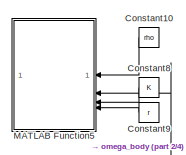
[diagram: root canvas - part 1/4, top center region]
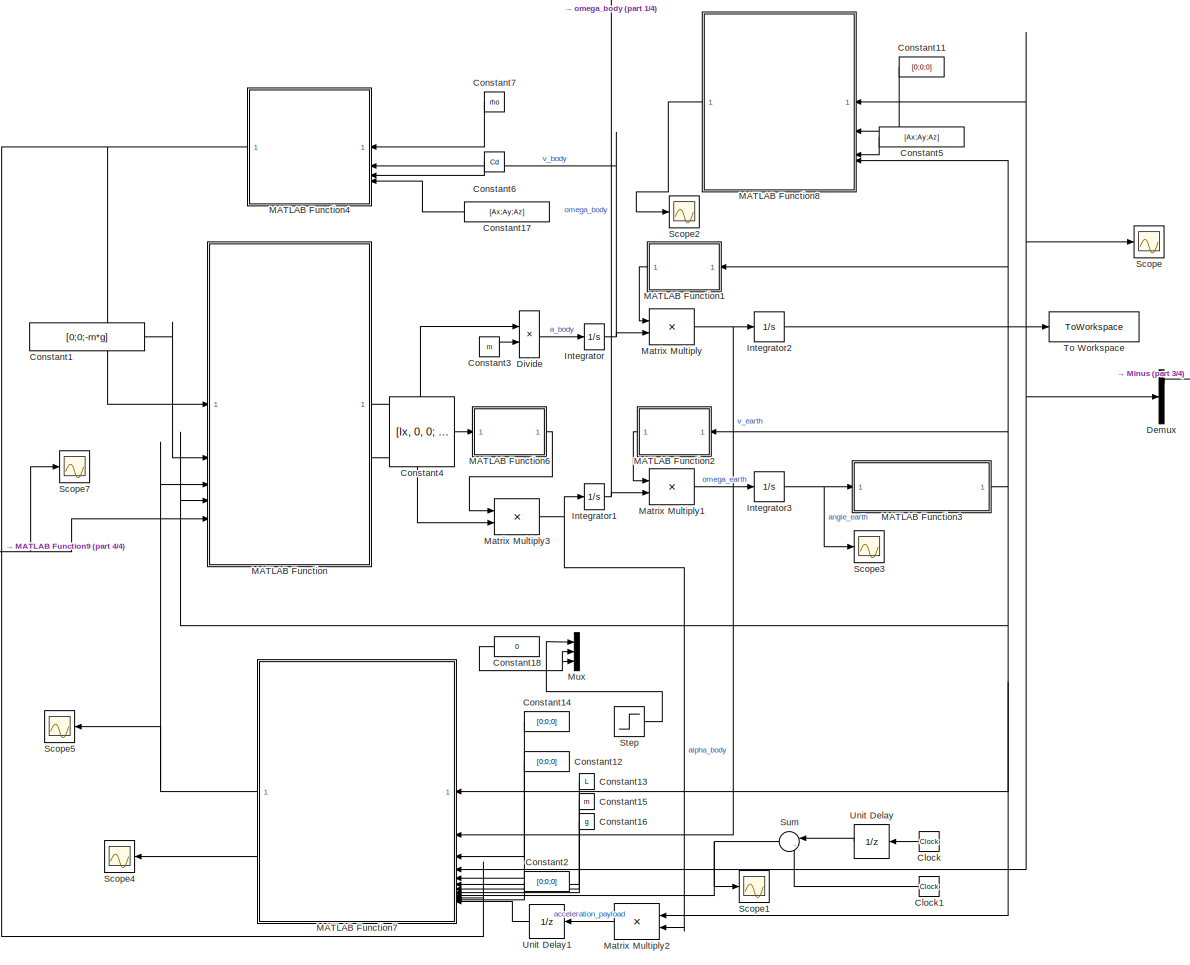
[diagram: root canvas - part 2/4, center side, full height]
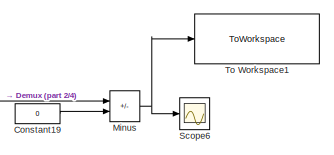
[diagram: root canvas - part 3/4, middle right region]
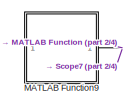
[diagram: root canvas - part 4/4, middle left region]
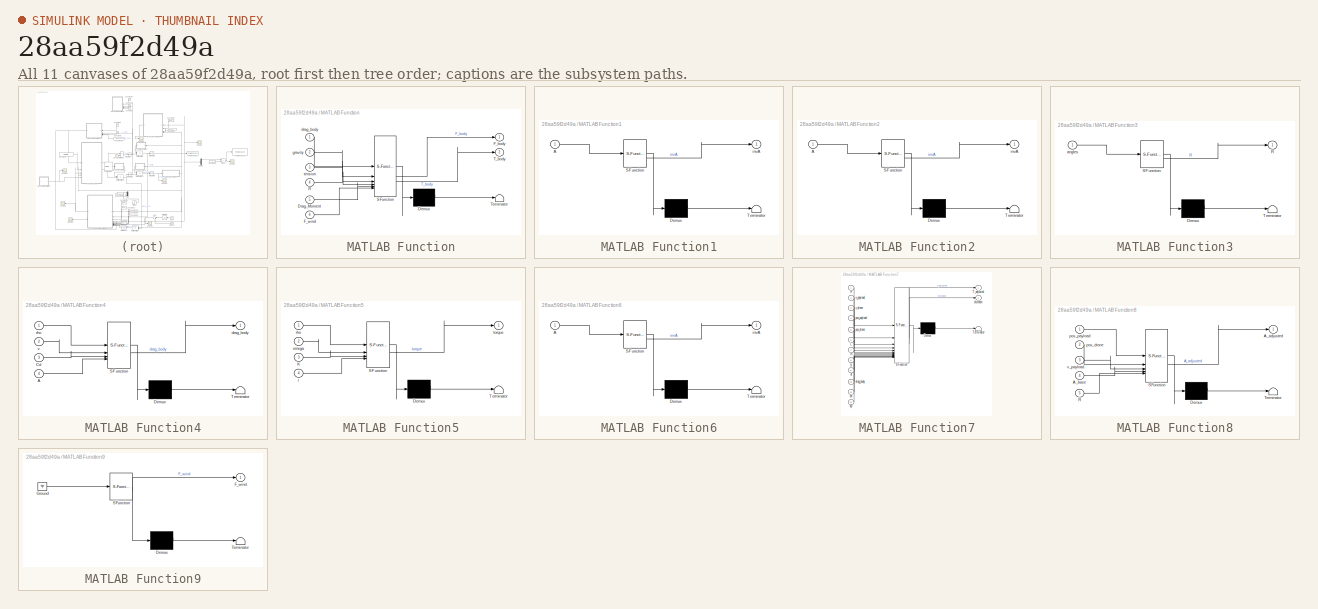
[diagram: thumbnail index - all 11 canvases of the model, root first then tree order]
MODEL slx_28aa59f2d49a
KIND model
CONFIG AbsTol = auto
CONFIG EnableMultiTasking = off
CONFIG FixedStep = 0.0001
CONFIG MaxStep = auto
CONFIG MinStep = auto
CONFIG RelTol = 1e-3
CONFIG SampleTimeConstraint = Unconstrained
CONFIG SolverName = VariableStepAuto
CONFIG StartTime = 0.0
CONFIG StopTime = 50
BLOCK [Clock] Clock
  NameLocation = top
BLOCK [Clock] Clock1
  NameLocation = top
BLOCK [Constant] Constant1
  Value = [0;0;-m*g]
BLOCK [Constant] Constant10
  NameLocation = top
  Value = rho
BLOCK [Constant] Constant11
  NameLocation = top
  Value = [0;0;0]
BLOCK [Constant] Constant12
  NameLocation = top
  Value = [0;0;0]
BLOCK [Constant] Constant13
  NameLocation = top
  Value = L
BLOCK [Constant] Constant14
  NameLocation = top
  Value = [0;0;0]
BLOCK [Constant] Constant15
  NameLocation = top
  Value = m
BLOCK [Constant] Constant16
  NameLocation = top
  Value = g
BLOCK [Constant] Constant17
  NameLocation = top
  Value = [Ax;Ay;Az]
BLOCK [Constant] Constant18
  NameLocation = top
  Value = 0
BLOCK [Constant] Constant19
  Value = 0
BLOCK [Constant] Constant2
  NameLocation = top
  Value = [0;0;0]
BLOCK [Constant] Constant3
  Value = m
BLOCK [Constant] Constant4
  Value = [Ix, 0, 0; 0, Iy, 0; 0, 0, Iz]
BLOCK [Constant] Constant5
  NameLocation = top
  Value = [Ax;Ay;Az]
BLOCK [Constant] Constant6
  NameLocation = top
  Value = Cd
BLOCK [Constant] Constant7
  NameLocation = top
  Value = rho
BLOCK [Constant] Constant8
  NameLocation = top
  Value = K
BLOCK [Constant] Constant9
  NameLocation = top
  Value = r
BLOCK [Demux] Demux
  Outputs = 3
BLOCK [Product] Divide
  Inputs = */
BLOCK [Integrator] Integrator
BLOCK [Integrator] Integrator1
BLOCK [Integrator] Integrator2
  InitialCondition = [0,0,-5]
BLOCK [Integrator] Integrator3
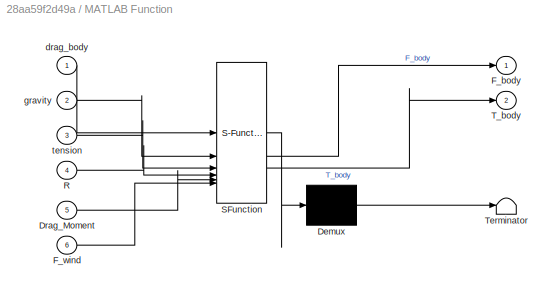
BLOCK [SubSystem] MATLAB Function
  ErrorFcn = Stateflow.Translate.translate
  PermitHierarchicalResolution = ExplicitOnly
  SFBlockType = MATLAB Function
  TreatAsAtomicUnit = on
BLOCK [Demux] MATLAB Function/ Demux 
  Outputs = 1
BLOCK [S-Function] MATLAB Function/ SFunction 
  EnableBusSupport = on
  FunctionName = sf_sfun
  PortCounts = [6 3]
  SFcnIsStateOwnerBlock = off
  SFunctionDeploymentMode = off
  Tag = Stateflow S-Function 2
BLOCK [Terminator] MATLAB Function/ Terminator 
BLOCK [Inport] MATLAB Function/Drag_Moment
  Port = 5
BLOCK [Outport] MATLAB Function/F_body
BLOCK [Inport] MATLAB Function/F_wind
  Port = 6
BLOCK [Inport] MATLAB Function/R
  Port = 4
BLOCK [Outport] MATLAB Function/T_body
  Port = 2
BLOCK [Inport] MATLAB Function/drag_body
BLOCK [Inport] MATLAB Function/gravity
  Port = 2
BLOCK [Inport] MATLAB Function/tension
  Port = 3
BLOCK [SubSystem] MATLAB Function1
  ErrorFcn = Stateflow.Translate.translate
  NameLocation = top
  PermitHierarchicalResolution = ExplicitOnly
  SFBlockType = MATLAB Function
  TreatAsAtomicUnit = on
BLOCK [Demux] MATLAB Function1/ Demux 
  Outputs = 1
BLOCK [S-Function] MATLAB Function1/ SFunction 
  EnableBusSupport = on
  FunctionName = sf_sfun
  PortCounts = [1 2]
  SFcnIsStateOwnerBlock = off
  SFunctionDeploymentMode = off
  Tag = Stateflow S-Function 1
BLOCK [Terminator] MATLAB Function1/ Terminator 
BLOCK [Inport] MATLAB Function1/A
BLOCK [Outport] MATLAB Function1/invA
BLOCK [SubSystem] MATLAB Function2
  ErrorFcn = Stateflow.Translate.translate
  NameLocation = top
  PermitHierarchicalResolution = ExplicitOnly
  SFBlockType = MATLAB Function
  TreatAsAtomicUnit = on
BLOCK [Demux] MATLAB Function2/ Demux 
  Outputs = 1
BLOCK [S-Function] MATLAB Function2/ SFunction 
  EnableBusSupport = on
  FunctionName = sf_sfun
  PortCounts = [1 2]
  SFcnIsStateOwnerBlock = off
  SFunctionDeploymentMode = off
  Tag = Stateflow S-Function 3
BLOCK [Terminator] MATLAB Function2/ Terminator 
BLOCK [Inport] MATLAB Function2/A
BLOCK [Outport] MATLAB Function2/invA
BLOCK [SubSystem] MATLAB Function3
  ErrorFcn = Stateflow.Translate.translate
  PermitHierarchicalResolution = ExplicitOnly
  SFBlockType = MATLAB Function
  TreatAsAtomicUnit = on
BLOCK [Demux] MATLAB Function3/ Demux 
  Outputs = 1
BLOCK [S-Function] MATLAB Function3/ SFunction 
  EnableBusSupport = on
  FunctionName = sf_sfun
  PortCounts = [1 2]
  SFcnIsStateOwnerBlock = off
  SFunctionDeploymentMode = off
  Tag = Stateflow S-Function 4
BLOCK [Terminator] MATLAB Function3/ Terminator 
BLOCK [Outport] MATLAB Function3/R
BLOCK [Inport] MATLAB Function3/angles
BLOCK [SubSystem] MATLAB Function4
  ErrorFcn = Stateflow.Translate.translate
  NameLocation = top
  PermitHierarchicalResolution = ExplicitOnly
  SFBlockType = MATLAB Function
  TreatAsAtomicUnit = on
BLOCK [Demux] MATLAB Function4/ Demux 
  Outputs = 1
BLOCK [S-Function] MATLAB Function4/ SFunction 
  EnableBusSupport = on
  FunctionName = sf_sfun
  PortCounts = [4 2]
  SFcnIsStateOwnerBlock = off
  SFunctionDeploymentMode = off
  Tag = Stateflow S-Function 5
BLOCK [Terminator] MATLAB Function4/ Terminator 
BLOCK [Inport] MATLAB Function4/A
  Port = 4
BLOCK [Inport] MATLAB Function4/Cd
  Port = 3
BLOCK [Outport] MATLAB Function4/drag_body
BLOCK [Inport] MATLAB Function4/rho
BLOCK [Inport] MATLAB Function4/v
  Port = 2
BLOCK [SubSystem] MATLAB Function5
  ErrorFcn = Stateflow.Translate.translate
  NameLocation = top
  PermitHierarchicalResolution = ExplicitOnly
  SFBlockType = MATLAB Function
  TreatAsAtomicUnit = on
BLOCK [Demux] MATLAB Function5/ Demux 
  Outputs = 1
BLOCK [S-Function] MATLAB Function5/ SFunction 
  EnableBusSupport = on
  FunctionName = sf_sfun
  PortCounts = [4 2]
  SFcnIsStateOwnerBlock = off
  SFunctionDeploymentMode = off
  Tag = Stateflow S-Function 6
BLOCK [Terminator] MATLAB Function5/ Terminator 
BLOCK [Inport] MATLAB Function5/K
  Port = 3
BLOCK [Inport] MATLAB Function5/omega
  Port = 2
BLOCK [Inport] MATLAB Function5/r
  Port = 4
BLOCK [Inport] MATLAB Function5/rho
BLOCK [Outport] MATLAB Function5/torque
BLOCK [SubSystem] MATLAB Function6
  ErrorFcn = Stateflow.Translate.translate
  PermitHierarchicalResolution = ExplicitOnly
  SFBlockType = MATLAB Function
  TreatAsAtomicUnit = on
BLOCK [Demux] MATLAB Function6/ Demux 
  Outputs = 1
BLOCK [S-Function] MATLAB Function6/ SFunction 
  EnableBusSupport = on
  FunctionName = sf_sfun
  PortCounts = [1 2]
  SFcnIsStateOwnerBlock = off
  SFunctionDeploymentMode = off
  Tag = Stateflow S-Function 7
BLOCK [Terminator] MATLAB Function6/ Terminator 
BLOCK [Inport] MATLAB Function6/A
BLOCK [Outport] MATLAB Function6/invA
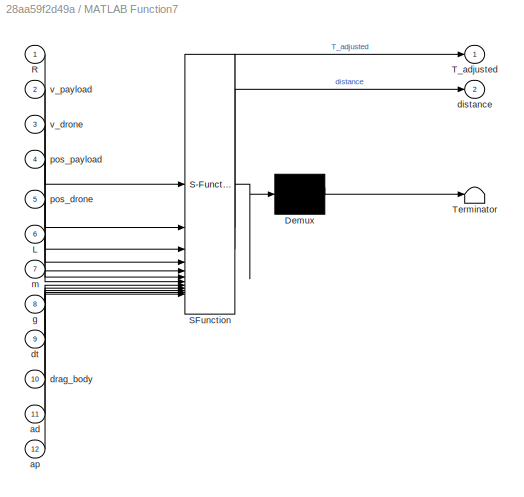
BLOCK [SubSystem] MATLAB Function7
  ErrorFcn = Stateflow.Translate.translate
  NameLocation = top
  PermitHierarchicalResolution = ExplicitOnly
  SFBlockType = MATLAB Function
  TreatAsAtomicUnit = on
BLOCK [Demux] MATLAB Function7/ Demux 
  Outputs = 1
BLOCK [S-Function] MATLAB Function7/ SFunction 
  EnableBusSupport = on
  FunctionName = sf_sfun
  PortCounts = [12 3]
  SFcnIsStateOwnerBlock = off
  SFunctionDeploymentMode = off
  Tag = Stateflow S-Function 8
BLOCK [Terminator] MATLAB Function7/ Terminator 
BLOCK [Inport] MATLAB Function7/L
  Port = 6
BLOCK [Inport] MATLAB Function7/R
BLOCK [Outport] MATLAB Function7/T_adjusted
BLOCK [Inport] MATLAB Function7/ad
  Port = 11
BLOCK [Inport] MATLAB Function7/ap
  Port = 12
BLOCK [Outport] MATLAB Function7/distance
  Port = 2
BLOCK [Inport] MATLAB Function7/drag_body
  Port = 10
BLOCK [Inport] MATLAB Function7/dt
  Port = 9
BLOCK [Inport] MATLAB Function7/g
  Port = 8
BLOCK [Inport] MATLAB Function7/m
  Port = 7
BLOCK [Inport] MATLAB Function7/pos_drone
  Port = 5
BLOCK [Inport] MATLAB Function7/pos_payload
  Port = 4
BLOCK [Inport] MATLAB Function7/v_drone
  Port = 3
BLOCK [Inport] MATLAB Function7/v_payload
  Port = 2
BLOCK [SubSystem] MATLAB Function8
  ErrorFcn = Stateflow.Translate.translate
  NameLocation = top
  PermitHierarchicalResolution = ExplicitOnly
  SFBlockType = MATLAB Function
  TreatAsAtomicUnit = on
BLOCK [Demux] MATLAB Function8/ Demux 
  Outputs = 1
BLOCK [S-Function] MATLAB Function8/ SFunction 
  EnableBusSupport = on
  FunctionName = sf_sfun
  PortCounts = [5 2]
  SFcnIsStateOwnerBlock = off
  SFunctionDeploymentMode = off
  Tag = Stateflow S-Function 9
BLOCK [Terminator] MATLAB Function8/ Terminator 
BLOCK [Outport] MATLAB Function8/A_adjusted
BLOCK [Inport] MATLAB Function8/A_base
  Port = 4
BLOCK [Inport] MATLAB Function8/R
  Port = 5
BLOCK [Inport] MATLAB Function8/pos_drone
  Port = 2
BLOCK [Inport] MATLAB Function8/pos_payload
BLOCK [Inport] MATLAB Function8/v_payload
  Port = 3
BLOCK [SubSystem] MATLAB Function9
  ErrorFcn = Stateflow.Translate.translate
  PermitHierarchicalResolution = ExplicitOnly
  SFBlockType = MATLAB Function
  TreatAsAtomicUnit = on
BLOCK [Demux] MATLAB Function9/ Demux 
  Outputs = 1
BLOCK [Ground] MATLAB Function9/ Ground 
BLOCK [S-Function] MATLAB Function9/ SFunction 
  EnableBusSupport = on
  FunctionName = sf_sfun
  PortCounts = [1 2]
  SFcnIsStateOwnerBlock = off
  SFunctionDeploymentMode = off
  Tag = Stateflow S-Function 10
BLOCK [Terminator] MATLAB Function9/ Terminator 
BLOCK [Outport] MATLAB Function9/F_wind
BLOCK [Product] Matrix Multiply
  Multiplication = Matrix(*)
BLOCK [Product] Matrix Multiply1
  Multiplication = Matrix(*)
BLOCK [Product] Matrix Multiply2
  Multiplication = Matrix(*)
  NameLocation = top
BLOCK [Product] Matrix Multiply3
  Multiplication = Matrix(*)
BLOCK [Sum] Minus
  IconShape = rectangular
  Inputs = +-
BLOCK [Mux] Mux
  DisplayOption = bar
  Inputs = 3
BLOCK [Scope] Scope
  Floating = off
  NumInputPorts = 1
  ScopeSpecificationString = Simulink.scopes.TimeScopeBlockCfg('CurrentConfiguration', extmgr.ConfigurationSet(extmgr.Configuration('Core','General UI',true),extmgr.Configuration('Core','Source UI',true),extmgr.Configuration('Sources','WiredSimulink',true),extmgr.Configuration('Visuals','Time Domain',true,'SerializedDisplays',{struct('MinYLimReal','-7.18682','MaxYLimReal','4.71008','YLabelReal','','MinYLimMag','0.00000','MaxY...<+1531ch>
BLOCK [Scope] Scope1
  Floating = off
  NumInputPorts = 1
  ScopeSpecificationString = Simulink.scopes.TimeScopeBlockCfg('CurrentConfiguration', extmgr.ConfigurationSet(extmgr.Configuration('Core','General UI',true),extmgr.Configuration('Core','Source UI',true),extmgr.Configuration('Sources','WiredSimulink',true,'DataLoggingVariableName','ScopeData1'),extmgr.Configuration('Visuals','Time Domain',true,'SerializedDisplays',{struct('MinYLimReal','-0.000001','MaxYLimReal','0.000011','YL...<+1488ch>
BLOCK [Scope] Scope2
  Floating = off
  NumInputPorts = 1
  ScopeSpecificationString = Simulink.scopes.TimeScopeBlockCfg('CurrentConfiguration', extmgr.ConfigurationSet(extmgr.Configuration('Core','General UI',true),extmgr.Configuration('Core','Source UI',true),extmgr.Configuration('Sources','WiredSimulink',true,'DataLoggingVariableName','ScopeData1'),extmgr.Configuration('Visuals','Time Domain',true,'SerializedDisplays',{struct('MinYLimReal','-0.5','MaxYLimReal','4.5','YLabelReal',...<+1561ch>
BLOCK [Scope] Scope3
  Floating = off
  NumInputPorts = 1
  ScopeSpecificationString = Simulink.scopes.TimeScopeBlockCfg('CurrentConfiguration', extmgr.ConfigurationSet(extmgr.Configuration('Core','General UI',true),extmgr.Configuration('Core','Source UI',true),extmgr.Configuration('Sources','WiredSimulink',true,'DataLoggingVariableName','ScopeData1'),extmgr.Configuration('Visuals','Time Domain',true,'SerializedDisplays',{struct('MinYLimReal','-84.95294','MaxYLimReal','735.68892','Y...<+1533ch>
BLOCK [Scope] Scope4
  Floating = off
  NameLocation = top
  NumInputPorts = 1
  ScopeSpecificationString = Simulink.scopes.TimeScopeBlockCfg('CurrentConfiguration', extmgr.ConfigurationSet(extmgr.Configuration('Core','General UI',true),extmgr.Configuration('Core','Source UI',true),extmgr.Configuration('Sources','WiredSimulink',true,'DataLoggingVariableName','ScopeData2'),extmgr.Configuration('Visuals','Time Domain',true,'SerializedDisplays',{struct('MinYLimReal','4.36114','MaxYLimReal','5.97723','YLabe...<+1499ch>
BLOCK [Scope] Scope5
  Floating = off
  NameLocation = top
  NumInputPorts = 1
  ScopeSpecificationString = Simulink.scopes.TimeScopeBlockCfg('CurrentConfiguration', extmgr.ConfigurationSet(extmgr.Configuration('Core','General UI',true),extmgr.Configuration('Core','Source UI',true),extmgr.Configuration('Sources','WiredSimulink',true,'DataLoggingVariableName','ScopeData3'),extmgr.Configuration('Visuals','Time Domain',true,'SerializedDisplays',{struct('MinYLimReal','-449402.49358','MaxYLimReal','3731330.7...<+1612ch>
BLOCK [Scope] Scope6
  Floating = off
  NumInputPorts = 1
  ScopeSpecificationString = Simulink.scopes.TimeScopeBlockCfg('CurrentConfiguration', extmgr.ConfigurationSet(extmgr.Configuration('Core','General UI',true),extmgr.Configuration('Core','Source UI',true),extmgr.Configuration('Sources','WiredSimulink',true,'DataLoggingVariableName','ScopeData1'),extmgr.Configuration('Visuals','Time Domain',true,'SerializedDisplays',{struct('MinYLimReal','-2.78153','MaxYLimReal','2.6706','YLabe...<+1529ch>
BLOCK [Scope] Scope7
  Floating = off
  NumInputPorts = 1
  ScopeSpecificationString = Simulink.scopes.TimeScopeBlockCfg('CurrentConfiguration', extmgr.ConfigurationSet(extmgr.Configuration('Core','General UI',true),extmgr.Configuration('Core','Source UI',true),extmgr.Configuration('Sources','WiredSimulink',true,'DataLoggingVariableName','ScopeData1'),extmgr.Configuration('Visuals','Time Domain',true,'SerializedDisplays',{struct('MinYLimReal','-29.93233','MaxYLimReal','29.94343','YL...<+1540ch>
BLOCK [Step] Step
  After = 3
  SampleTime = 0
  Time = 15
BLOCK [Sum] Sum
  Inputs = |-+
  NameLocation = top
BLOCK [ToWorkspace] To Workspace
  FixptAsFi = on
  MaxDataPoints = inf
  SampleTime = -1
  SaveFormat = Structure With Time
  VariableName = pp_data
BLOCK [ToWorkspace] To Workspace1
  FixptAsFi = on
  MaxDataPoints = inf
  SampleTime = -1
  VariableName = error_x_off_strongwind
BLOCK [UnitDelay] Unit Delay
  HasFrameUpgradeWarning = on
  NameLocation = top
  SampleTime = -1
BLOCK [UnitDelay] Unit Delay1
  HasFrameUpgradeWarning = on
  NameLocation = top
  SampleTime = -1
LINE Clock1:1 -> Sum:2
LINE Clock:1 -> Unit Delay:1
LINE Constant10:1 -> MATLAB Function5:1
LINE Constant11:1 -> MATLAB Function8:2
LINE Constant12:1 -> MATLAB Function7:5
LINE Constant13:1 -> MATLAB Function7:6
LINE Constant14:1 -> MATLAB Function7:3
LINE Constant15:1 -> MATLAB Function7:7
LINE Constant16:1 -> MATLAB Function7:8
LINE Constant17:1 -> MATLAB Function4:4
NET Constant18:1 -> Mux:2, Mux:3
LINE Constant19:1 -> Minus:2
LINE Constant1:1 -> MATLAB Function:2
LINE Constant2:1 -> MATLAB Function7:11
LINE Constant3:1 -> Divide:2
LINE Constant4:1 -> MATLAB Function6:1
LINE Constant5:1 -> MATLAB Function8:4
LINE Constant6:1 -> MATLAB Function4:3
LINE Constant7:1 -> MATLAB Function4:1
LINE Constant8:1 -> MATLAB Function5:3
LINE Constant9:1 -> MATLAB Function5:4
LINE Demux:1 -> Minus:1
LINE Divide:1 -> Integrator:1
NET Integrator1:1 -> MATLAB Function5:2, Matrix Multiply1:2
NET Integrator2:1 -> Demux:1, MATLAB Function7:4, MATLAB Function8:1, Scope:1, To Workspace:1
NET Integrator3:1 -> MATLAB Function3:1, Scope3:1
NET Integrator:1 -> MATLAB Function4:2, Matrix Multiply:2
LINE MATLAB Function1:1 -> Matrix Multiply:1
LINE MATLAB Function2:1 -> Matrix Multiply1:1
NET MATLAB Function3:1 -> MATLAB Function1:1, MATLAB Function2:1, MATLAB Function7:1, MATLAB Function8:5, MATLAB Function:4, Matrix Multiply2:1
NET MATLAB Function4:1 -> MATLAB Function7:10, MATLAB Function:1
LINE MATLAB Function6:1 -> Matrix Multiply3:1
NET MATLAB Function7:1 -> MATLAB Function:3, Scope5:1
LINE MATLAB Function7:2 -> Scope4:1
LINE MATLAB Function8:1 -> Scope2:1
NET MATLAB Function9:1 -> MATLAB Function:6, Scope7:1
LINE MATLAB Function:1 -> Divide:1
LINE MATLAB Function:2 -> Matrix Multiply3:2
LINE Matrix Multiply1:1 -> Integrator3:1
LINE Matrix Multiply2:1 -> Unit Delay1:1
NET Matrix Multiply3:1 -> Integrator1:1, Matrix Multiply2:2
NET Matrix Multiply:1 -> Integrator2:1, MATLAB Function7:2
NET Minus:1 -> Scope6:1, To Workspace1:1
LINE Step:1 -> Mux:1
NET Sum:1 -> MATLAB Function7:9, Scope1:1
LINE Unit Delay1:1 -> MATLAB Function7:12
LINE Unit Delay:1 -> Sum:1
note: NET lines group one-source signal fan-out (src -> all destinations, sorted); 1:1 wires keep LINE
CHART MATLAB Function8 states=1 transitions=1
  STATE_LABEL 'eML_blk_kernel()'
  STATE_LABEL 'SCRIPT:\nfunction A_adjusted = calculate_A(pos_payload, pos_drone, v_payload, A_base, R)\n    % pos_payload: Current position of the payload, 3x1 vector (Earth frame)\n    % pos_drone: Current position of the drone, 3x1 vector (Earth frame)\n    % v_payload: Current velocity of the payload, 3x1 vector (optional) (Earth frame)\n    % A_base: Base area value [Ax; Ay; Az]\n    % R: Rotation matrix from Ear...<+1539ch>'
CHART MATLAB Function9 states=1 transitions=1
  STATE_LABEL 'eML_blk_kernel()'
  STATE_LABEL 'SCRIPT:\nfunction F_wind = WindDisturbance()\n% WINDDISTURBANCE Generates a random wind force vector F_wind based on simulation time t\n% and updates it at a specified step interval.\n%\n% Inputs:\n%   t - Current simulation time (from Simulink)\n\n% Parameters\nwind_variance = [2; 2; 1]; % Range of wind speed (m/s) in x, y, z directions\nwind_scale = 11;  % Scale factor to convert wind speed to force (N/(m...<+866ch>'
CHART MATLAB Function1 states=1 transitions=1
  STATE_LABEL 'eML_blk_kernel()'
  STATE_LABEL 'SCRIPT:\nfunction invA = fcn(A)\n%inv\ninvA = inv(A); \nend\n'
CHART MATLAB Function states=1 transitions=1
  STATE_LABEL 'eML_blk_kernel()'
  STATE_LABEL 'SCRIPT:\nfunction [F_body, T_body] = process_forces(drag_body, gravity, tension, R , Drag_Moment, F_wind)\n   \n    c = 0.8; % The length of the rectangular prism along the z-axis in body frame\n    r_top = [0;0;0.5 * c];\n    % Convert forces from the Earth coordinate system to the body frame\n    \n    gravity_body = R * gravity;\n    tension_body = R * tension;\n    F_wind_body = R * F_wind;\n    % Total...<+275ch>'
CHART MATLAB Function2 states=1 transitions=1
  STATE_LABEL 'eML_blk_kernel()'
  STATE_LABEL 'SCRIPT:\nfunction invA = fcn(A)\n%inv\ninvA = inv(A);  \nend\n'
CHART MATLAB Function3 states=1 transitions=1
  STATE_LABEL 'eML_blk_kernel()'
  STATE_LABEL 'SCRIPT:\nfunction R = euler_to_rotation_matrix(angles)\n% Calculate the rotation matrix for the given Euler angles\n% Input: angles (3x1 column vector) containing Euler angles [phi; theta; psi]\n% Output: R (3x3 rotation matrix)\n\n% Extract Euler angles\nphi = angles(1);   % Angle around the x-axis\ntheta = angles(2); % Angle around the y-axis\npsi = angles(3);   % Angle around the z-axis\n\n% Rotation matr...<+389ch>'
CHART MATLAB Function4 states=1 transitions=1
  STATE_LABEL 'eML_blk_kernel()'
  STATE_LABEL 'SCRIPT:\nfunction drag_body = fcn(rho, v, Cd, A)\n    % Magnitude of the velocity\n    speed = sqrt(v(1)^2 + v(2)^2 + v(3)^2);\n    \n    % Unit vector\n    if speed ~= 0\n        unit_v = v / speed;\n    else\n        % when velocity = 0\n        unit_v = [0; 0; 0];\n    end\n    \n    % calculate drag\n    drag_magnitude = 0.5 .* rho .* speed^2 .* Cd .* A;\n    \n    % apply direction\n    drag_body = -drag_magn...<+23ch>'
CHART MATLAB Function5 states=1 transitions=1
  STATE_LABEL 'eML_blk_kernel()'
  STATE_LABEL 'SCRIPT:\nfunction torque = fcn_rotate(rho, omega, K, r)\n    % 计算角速度产生的速度\n    % omega 是一个三维列向量 [omega_x; omega_y; omega_z]\n    % 半径 r 是相同的\n    speed = r * norm(omega);  % 线速度 = 角速度 × 半径\n    \n    % 计算速度的单位向量\n    if speed ~= 0\n        unit_v = (r * omega) / speed;\n    else\n        % 当速度为 0 时\n        unit_v = [0; 0; 0];\n    end\n    \n    % 计算阻力力矩的大小\n    drag_magnitude = 0.5 * rho * speed^2 * K;\n    \n   ...<+109ch>'
CHART MATLAB Function6 states=1 transitions=1
  STATE_LABEL 'eML_blk_kernel()'
  STATE_LABEL 'SCRIPT:\nfunction invA = fcn(A)\n% 计算矩阵 A 的逆\n% 输入: A (3x3 矩阵)\n% 输出: invA (A 的逆矩阵)\ninvA = inv(A);  % 使用 MATLAB 的 inv 函数\nend\n'
CHART MATLAB Function7 states=1 transitions=1
  STATE_LABEL 'eML_blk_kernel()'
  STATE_LABEL "SCRIPT:\nfunction [T_adjusted, distance] = adjustTension(R, v_payload, v_drone, pos_payload, pos_drone, L, m, g, dt, drag_body, ad, ap)\n% Inputs:\n% R           - Rotation matrix representing the payload's orientation\n% v_payload   - Velocity vector of the payload\n% v_drone     - Velocity vector of the drone\n% pos_payload - Centroid position vector of the payload\n% pos_drone   - Position vector of t...<+3101ch>"
CHART  states=0 transitions=0
CHART  states=0 transitions=0
CHART  states=0 transitions=0
CHART  states=0 transitions=0
CHART  states=0 transitions=0
CHART  states=0 transitions=0
CHART  states=0 transitions=0
CHART  states=0 transitions=0
CHART  states=0 transitions=0
CHART  states=0 transitions=0
